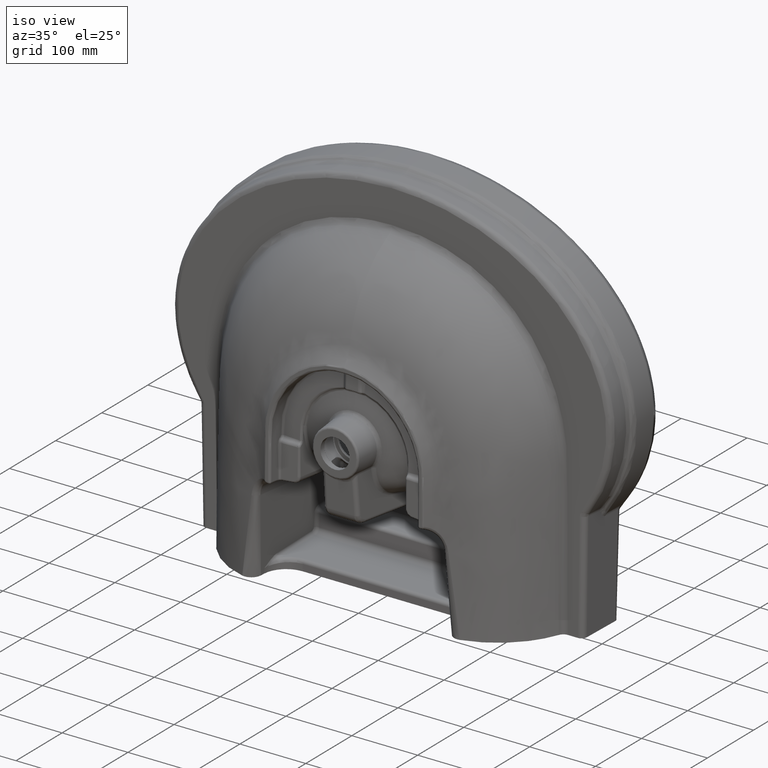
[diagram: clean part render]
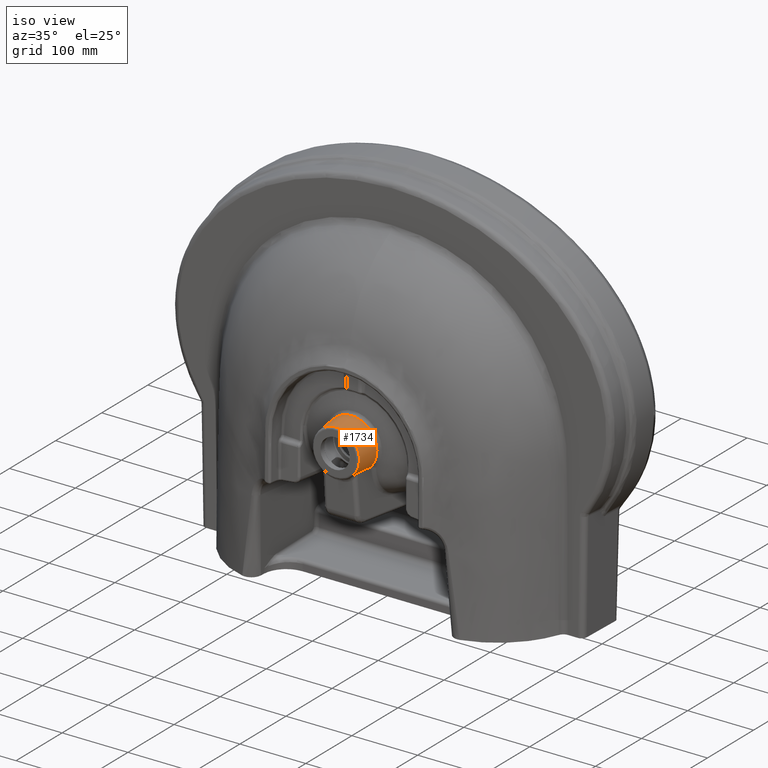
[diagram: same view with one face highlighted and labeled with its STEP entity id]
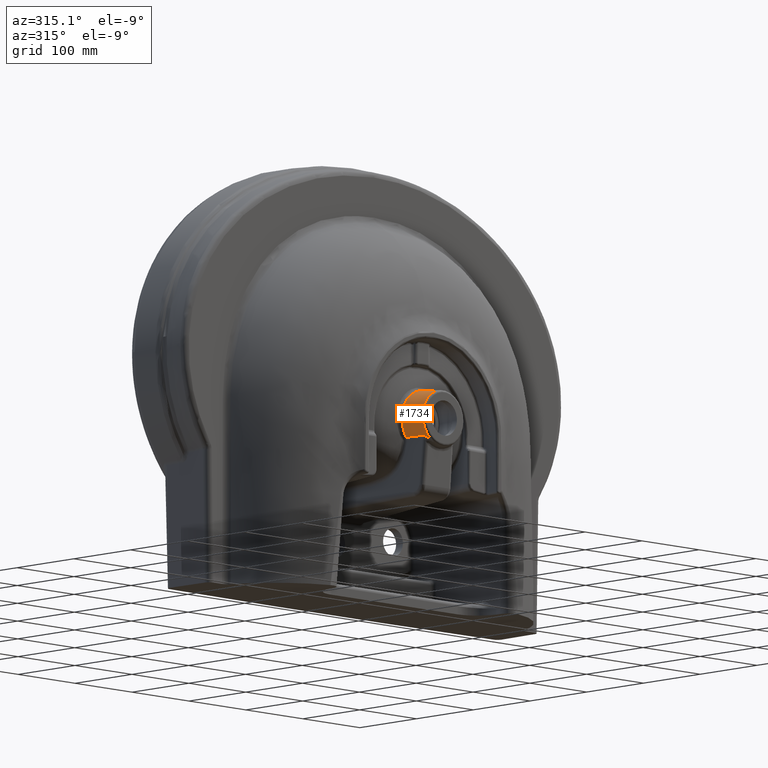
[diagram: same view with one face highlighted and labeled with its STEP entity id]
A machine part, iso view. The second image highlights one B-rep face of the part: STEP entity #1734.
A second angle (auxiliary view) of the same face is appended — the face is thin or edge-on in the first view.
In plain terms, the highlighted conical surface has half-angle 5 deg.
Its self-contained STEP definition (entity closure, byte-faithful):
#111=CONICAL_SURFACE('',#7331,36.7192591753,5.);
#1097=B_SPLINE_CURVE_WITH_KNOTS('',3,(#17355,#17356,#17357,#17358,#17359,
#17360,#17361,#17362,#17363,#17364,#17365,#17366,#17367,#17368,#17369,#17370,
#17371,#17372,#17373,#17374,#17375,#17376,#17377,#17378,#17379,#17380,#17381,
#17382,#17383,#17384,#17385,#17386,#17387,#17388,#17389,#17390),
 .UNSPECIFIED.,.F.,.F.,(4,2,2,2,2,2,2,2,2,2,2,2,2,2,2,2,2,4),(0.,0.125000000000004,
0.187500000000005,0.250000000000006,0.375000000000006,0.437500000000007,
0.468750000000006,0.500000000000006,0.562500000000006,0.593750000000006,
0.625000000000006,0.687500000000006,0.718750000000005,0.750000000000005,
0.812500000000004,0.843750000000003,0.875000000000003,1.),.UNSPECIFIED.);
#1100=B_SPLINE_CURVE_WITH_KNOTS('',3,(#17448,#17449,#17450,#17451),
 .UNSPECIFIED.,.F.,.F.,(4,4),(0.,1.),.UNSPECIFIED.);
#1101=B_SPLINE_CURVE_WITH_KNOTS('',3,(#17453,#17454,#17455,#17456,#17457,
#17458,#17459,#17460,#17461,#17462,#17463,#17464,#17465,#17466,#17467,#17468,
#17469,#17470,#17471,#17472,#17473,#17474,#17475,#17476,#17477,#17478,#17479,
#17480,#17481,#17482,#17483,#17484,#17485,#17486,#17487,#17488,#17489,#17490,
#17491,#17492,#17493,#17494,#17495,#17496,#17497,#17498),.UNSPECIFIED.,
 .F.,.F.,(4,2,2,2,2,1,2,2,2,2,2,2,1,1,2,2,2,2,2,2,1,2,2,2,4),(0.,0.125000000000002,
0.187500000000003,0.218750000000004,0.234375000000004,0.242187500000004,
0.246093750000005,0.250000000000005,0.375000000000006,0.437500000000008,
0.468750000000008,0.484375000000008,0.492187500000008,0.496093750000009,
0.498046875000009,0.500000000000009,0.625000000000008,0.687500000000008,
0.718750000000008,0.734375000000008,0.742187500000008,0.746093750000008,
0.750000000000008,0.875000000000004,1.),.UNSPECIFIED.);
#1102=B_SPLINE_CURVE_WITH_KNOTS('',3,(#17500,#17501,#17502,#17503,#17504,
#17505,#17506,#17507,#17508,#17509,#17510,#17511,#17512,#17513,#17514,#17515,
#17516,#17517,#17518,#17519,#17520,#17521,#17522,#17523,#17524,#17525,#17526,
#17527,#17528,#17529,#17530,#17531,#17532,#17533,#17534,#17535,#17536,#17537,
#17538,#17539,#17540,#17541,#17542,#17543,#17544),.UNSPECIFIED.,.F.,.F.,
(4,2,2,2,2,2,2,2,2,2,2,2,1,1,2,2,2,2,2,2,1,2,2,4),(0.,0.125000000000004,
0.187500000000006,0.218750000000007,0.234375000000007,0.242187500000007,
0.246093750000008,0.250000000000008,0.375000000000012,0.437500000000014,
0.468750000000015,0.484375000000015,0.492187500000016,0.496093750000016,
0.498046875000015,0.500000000000015,0.625000000000011,0.687500000000009,
0.718750000000009,0.734375000000008,0.742187500000008,0.746093750000008,
0.750000000000008,1.),.UNSPECIFIED.);
#1103=B_SPLINE_CURVE_WITH_KNOTS('',3,(#17546,#17547,#17548,#17549),
 .UNSPECIFIED.,.F.,.F.,(4,4),(0.,1.),.UNSPECIFIED.);
#1104=B_SPLINE_CURVE_WITH_KNOTS('',3,(#17551,#17552,#17553,#17554,#17555,
#17556,#17557,#17558,#17559,#17560,#17561,#17562,#17563,#17564,#17565,#17566,
#17567,#17568,#17569,#17570,#17571,#17572,#17573,#17574,#17575,#17576,#17577,
#17578,#17579,#17580,#17581,#17582,#17583,#17584,#17585,#17586),
 .UNSPECIFIED.,.F.,.F.,(4,2,2,2,2,2,2,2,2,2,2,2,2,2,2,2,2,4),(0.,0.0625000000000006,
0.0937500000000007,0.109375000000001,0.125000000000001,0.187500000000004,
0.218750000000005,0.234375000000006,0.250000000000006,0.312500000000007,
0.375000000000008,0.437500000000009,0.468750000000009,0.500000000000009,
0.625000000000007,0.687500000000006,0.750000000000006,1.),.UNSPECIFIED.);
#1734=ADVANCED_FACE('',(#2200),#111,.T.);
#2200=FACE_OUTER_BOUND('',#2679,.T.);
#2679=EDGE_LOOP('',(#3730,#3731,#3732,#3733,#3734,#3735,#3736));
#3730=ORIENTED_EDGE('',*,*,#6307,.F.);
#3731=ORIENTED_EDGE('',*,*,#6311,.F.);
#3732=ORIENTED_EDGE('',*,*,#6312,.T.);
#3733=ORIENTED_EDGE('',*,*,#6313,.T.);
#3734=ORIENTED_EDGE('',*,*,#6314,.F.);
#3735=ORIENTED_EDGE('',*,*,#6315,.F.);
#3736=ORIENTED_EDGE('',*,*,#6316,.F.);
#5538=VERTEX_POINT('',#17271);
#5541=VERTEX_POINT('',#17354);
#5545=VERTEX_POINT('',#17452);
#5546=VERTEX_POINT('',#17499);
#5547=VERTEX_POINT('',#17545);
#5548=VERTEX_POINT('',#17550);
#5549=VERTEX_POINT('',#17587);
#6307=EDGE_CURVE('',#5541,#5538,#1097,.T.);
#6311=EDGE_CURVE('',#5545,#5541,#1100,.T.);
#6312=EDGE_CURVE('',#5545,#5546,#1101,.T.);
#6313=EDGE_CURVE('',#5546,#5547,#1102,.T.);
#6314=EDGE_CURVE('',#5548,#5547,#1103,.T.);
#6315=EDGE_CURVE('',#5549,#5548,#1104,.T.);
#6316=EDGE_CURVE('',#5538,#5549,#7157,.T.);
#7157=CIRCLE('',#7330,35.23959057222);
#7330=AXIS2_PLACEMENT_3D('',#17588,#7737,#7738);
#7331=AXIS2_PLACEMENT_3D('',#17589,#7739,#7740);
#7737=DIRECTION('',(0.,-1.,0.));
#7738=DIRECTION('',(0.539936817690787,0.,-0.841705550000679));
#7739=DIRECTION('',(0.,1.,0.));
#7740=DIRECTION('',(0.,2.7932573675668E-016,-1.));
#17271=CARTESIAN_POINT('',(19.02690929033,-48.06148912405,-29.66111273829));
#17354=CARTESIAN_POINT('',(27.36742025504,-38.31693587159,-23.53018464543));
#17355=CARTESIAN_POINT('',(27.3674849632937,-38.3170449289168,-23.5302517340015));
#17356=CARTESIAN_POINT('',(27.3089306948264,-38.8289822426645,-23.5289065919521));
#17357=CARTESIAN_POINT('',(27.2186284288788,-39.353996151221,-23.5638213444564));
#17358=CARTESIAN_POINT('',(27.0356668548034,-40.1323249003992,-23.6700935815177));
#17359=CARTESIAN_POINT('',(26.9679059947458,-40.3869338605962,-23.7136910157977));
#17360=CARTESIAN_POINT('',(26.8163445516396,-40.8955857117562,-23.8180642734902));
#17361=CARTESIAN_POINT('',(26.7183074867943,-41.1877855233281,-23.8896759039773));
#17362=CARTESIAN_POINT('',(26.4700048708891,-41.8609349256838,-24.0776403027438));
#17363=CARTESIAN_POINT('',(26.2624670411606,-42.3417884650646,-24.2432716427274));
#17364=CARTESIAN_POINT('',(25.8750179028489,-43.0779945788448,-24.5613427019816));
#17365=CARTESIAN_POINT('',(25.7336663035254,-43.3254069527821,-24.678399446248));
#17366=CARTESIAN_POINT('',(25.5013144520807,-43.6961627604663,-24.8713733738905));
#17367=CARTESIAN_POINT('',(25.420477055001,-43.8196937419483,-24.9385900507838));
#17368=CARTESIAN_POINT('',(25.25178116209,-44.0661298044322,-25.0787907792987));
#17369=CARTESIAN_POINT('',(25.1438860613857,-44.2158423518676,-25.1683811830068));
#17370=CARTESIAN_POINT('',(24.9296598827644,-44.5024793157713,-25.3459313521029));
#17371=CARTESIAN_POINT('',(24.766684762523,-44.7071379405835,-25.4807043542421));
#17372=CARTESIAN_POINT('',(24.4886588616415,-45.0269474379565,-25.7085696879174));
#17373=CARTESIAN_POINT('',(24.3903900732851,-45.135675640813,-25.7887984511144));
#17374=CARTESIAN_POINT('',(24.1819273568029,-45.3558688581135,-25.9580480270397));
#17375=CARTESIAN_POINT('',(24.0437461874698,-45.4942462549857,-26.0695221146038));
#17376=CARTESIAN_POINT('',(23.7781541588802,-45.7496585187303,-26.2825939989064));
#17377=CARTESIAN_POINT('',(23.5384687565982,-45.9638868218391,-26.4730639763628));
#17378=CARTESIAN_POINT('',(23.1891746835658,-46.2445414559214,-26.7458564923392));
#17379=CARTESIAN_POINT('',(23.0711702163506,-46.3348018726569,-26.8373215896751));
#17380=CARTESIAN_POINT('',(22.832234981684,-46.5090032181179,-27.0209472757137));
#17381=CARTESIAN_POINT('',(22.7337352369406,-46.5781421513147,-27.0961651359303));
#17382=CARTESIAN_POINT('',(22.2995450906434,-46.8652076251323,-27.4240390121306));
#17383=CARTESIAN_POINT('',(22.0163687294589,-47.02926177799,-27.6332429616298));
#17384=CARTESIAN_POINT('',(21.6052438809971,-47.2418726315167,-27.9308289142294));
#17385=CARTESIAN_POINT('',(21.4704653123336,-47.3071595803439,-28.0273352652648));
#17386=CARTESIAN_POINT('',(21.2060243992109,-47.42774090661,-28.2147583600234));
#17387=CARTESIAN_POINT('',(21.1068199262109,-47.4708245963922,-28.2845313463963));
#17388=CARTESIAN_POINT('',(20.3203179167626,-47.786141197934,-28.8305277215603));
#17389=CARTESIAN_POINT('',(19.6761338005735,-47.9602026534731,-29.2552938913583));
#17390=CARTESIAN_POINT('',(19.0269376878194,-48.0614937267635,-29.6611570126401));
#17448=CARTESIAN_POINT('',(30.140318407424,-14.2360466944759,-23.4674152235691));
#17449=CARTESIAN_POINT('',(29.2131273885212,-22.2626338110819,-23.5151916719749));
#17450=CARTESIAN_POINT('',(28.2886616293489,-30.2896521403198,-23.5358614459981));
#17451=CARTESIAN_POINT('',(27.3673811386265,-38.316931359508,-23.5301526361117));
#17452=CARTESIAN_POINT('',(30.14027985695,-14.23604241999,-23.46738520628));
#17453=CARTESIAN_POINT('',(30.1403183029834,-14.2360466829053,-23.4674151405699));
#17454=CARTESIAN_POINT('',(32.2141334710564,-14.2889695574559,-20.7963789086787));
#17455=CARTESIAN_POINT('',(34.0100353713388,-14.3335525552318,-17.7479427803798));
#17456=CARTESIAN_POINT('',(36.0559305638153,-14.3879172367336,-12.7045122353821));
#17457=CARTESIAN_POINT('',(36.6298134949507,-14.4039538280405,-10.9458787089872));
#17458=CARTESIAN_POINT('',(37.3004350959598,-14.4248812612104,-8.21302720636841));
#17459=CARTESIAN_POINT('',(37.4922896037192,-14.4313358299686,-7.28632877095956));
#17460=CARTESIAN_POINT('',(37.7292231426979,-14.4402358196583,-5.87595657601444));
#17461=CARTESIAN_POINT('',(37.7997279405366,-14.4430721723136,-5.40244951999182));
#17462=CARTESIAN_POINT('',(37.8923776110321,-14.4471312354347,-4.68756661886323));
#17463=CARTESIAN_POINT('',(37.9354257578448,-14.4491119005297,-4.32897000648393));
#17464=CARTESIAN_POINT('',(37.9734861018171,-14.4510192659265,-3.96872920705334));
#17465=CARTESIAN_POINT('',(37.9977433139923,-14.4522745540359,-3.72821339944376));
#17466=CARTESIAN_POINT('',(38.0136438708285,-14.4531345313733,-3.56033642748416));
#17467=CARTESIAN_POINT('',(38.2340231745635,-14.4653734901693,-1.1458356619752));
#17468=CARTESIAN_POINT('',(38.3057096693966,-14.4766612187778,1.87692176085886));
#17469=CARTESIAN_POINT('',(37.5182663657218,-14.4927222827181,7.29025841448654));
#17470=CARTESIAN_POINT('',(37.1035747477198,-14.4979308825361,9.23820041150281));
#17471=CARTESIAN_POINT('',(36.1504069776095,-14.5055261500201,12.3149742425542));
#17472=CARTESIAN_POINT('',(35.7774291119202,-14.5080216338076,13.3659962164569));
#17473=CARTESIAN_POINT('',(35.1222267882946,-14.511710451428,14.969265607986));
#17474=CARTESIAN_POINT('',(34.8878733950134,-14.5129309892914,15.5081155810465));
#17475=CARTESIAN_POINT('',(34.510861873748,-14.5147481940712,16.3213300554565));
#17476=CARTESIAN_POINT('',(34.3159865175074,-14.5156533959574,16.7291692191514));
#17477=CARTESIAN_POINT('',(34.0771550907353,-14.5167035139429,17.2067336984464));
#17478=CARTESIAN_POINT('',(33.9723048055206,-14.5171522893191,17.4117343222196));
#17479=CARTESIAN_POINT('',(33.9018465786638,-14.517451189528,17.5484696745133));
#17480=CARTESIAN_POINT('',(33.851706712629,-14.5176614821681,17.6448492875682));
#17481=CARTESIAN_POINT('',(32.4764808219297,-14.5233933450468,20.2744620869653));
#17482=CARTESIAN_POINT('',(30.6525485071368,-14.5271959104296,23.0426536033496));
#17483=CARTESIAN_POINT('',(26.959791517488,-14.5301380860187,27.0868119324599));
#17484=CARTESIAN_POINT('',(25.5700670335869,-14.5306585324676,28.4146566162577));
#17485=CARTESIAN_POINT('',(23.2286591322079,-14.5307487840196,30.3088509046117));
#17486=CARTESIAN_POINT('',(22.4055137048678,-14.5306637981833,30.923844423221));
#17487=CARTESIAN_POINT('',(21.1058601048247,-14.5303637148987,31.8121020714521));
#17488=CARTESIAN_POINT('',(20.6618308281748,-14.5302349197154,32.1024744168788));
#17489=CARTESIAN_POINT('',(19.979563664164,-14.529998575808,32.5281901918884));
#17490=CARTESIAN_POINT('',(19.6343754747791,-14.5298696160711,32.7385867028634));
#17491=CARTESIAN_POINT('',(19.2831155268354,-14.5297244746595,32.9450465400622));
#17492=CARTESIAN_POINT('',(19.0475948909604,-14.5296241177907,33.0817840381513));
#17493=CARTESIAN_POINT('',(18.9745185229726,-14.5295926195071,33.12401462954));
#17494=CARTESIAN_POINT('',(13.5471976005106,-14.5271422877727,36.1976188273594));
#17495=CARTESIAN_POINT('',(8.9005042420836,-14.5253589627745,37.265961448638));
#17496=CARTESIAN_POINT('',(2.41686801799315,-14.5229778212968,38.2380113546587));
#17497=CARTESIAN_POINT('',(0.508638632665941,-14.5223800048173,38.1738695507199));
#17498=CARTESIAN_POINT('',(0.000821614707323499,-14.5223749425972,38.1738809233294));
#17499=CARTESIAN_POINT('',(0.000821614582285,-14.52237443431,38.17387511358));
#17500=CARTESIAN_POINT('',(0.000821614707323499,-14.5223749425972,38.1738809233294));
#17501=CARTESIAN_POINT('',(-0.509782623979628,-14.5223794442278,38.1738915191997));
#17502=CARTESIAN_POINT('',(-2.41939498065212,-14.5229768879692,38.2378491468848));
#17503=CARTESIAN_POINT('',(-7.28203148436872,-14.5247624667476,37.5085004898617));
#17504=CARTESIAN_POINT('',(-9.23410290025165,-14.5255058952014,37.113184842424));
#17505=CARTESIAN_POINT('',(-12.5691493272236,-14.5268433911738,36.0636942344296));
#17506=CARTESIAN_POINT('',(-13.7477688531696,-14.5273262820465,35.6370907561144));
#17507=CARTESIAN_POINT('',(-15.5943105481849,-14.5281062066784,34.8492783304393));
#17508=CARTESIAN_POINT('',(-16.2228389705281,-14.5283754462762,34.5620045616055));
#17509=CARTESIAN_POINT('',(-17.1815619833278,-14.5287932027536,34.0899271344415));
#17510=CARTESIAN_POINT('',(-17.5037849335921,-14.5289347710929,33.9257069149451));
#17511=CARTESIAN_POINT('',(-17.9905830164464,-14.5291505978719,33.6685688292875));
#17512=CARTESIAN_POINT('',(-18.1534258890279,-14.5292231191766,33.5810548901851));
#17513=CARTESIAN_POINT('',(-18.4801751832026,-14.5293693198761,33.4023392549505));
#17514=CARTESIAN_POINT('',(-18.6893634354502,-14.5294634538647,33.2854963633434));
#17515=CARTESIAN_POINT('',(-22.6199770954541,-14.5312389807845,31.0597555034332));
#17516=CARTESIAN_POINT('',(-25.7275499162774,-14.531119416367,28.4360741629949));
#17517=CARTESIAN_POINT('',(-29.4205865128326,-14.5281781385035,24.3919679924644));
#17518=CARTESIAN_POINT('',(-30.4930390915308,-14.5267373906762,23.0237050144068));
#17519=CARTESIAN_POINT('',(-31.8925689124368,-14.5238857861259,20.9946239942067));
#17520=CARTESIAN_POINT('',(-32.3243026759904,-14.5228201708076,20.3220069490456));
#17521=CARTESIAN_POINT('',(-32.9238709565683,-14.5210491271278,19.3241645912284));
#17522=CARTESIAN_POINT('',(-33.1157244160037,-14.5204300091175,18.9933893114669));
#17523=CARTESIAN_POINT('',(-33.392036804333,-14.5194581769264,18.500594919144));
#17524=CARTESIAN_POINT('',(-33.5273262114093,-14.518961472037,18.2550391079784));
#17525=CARTESIAN_POINT('',(-33.6802657181403,-14.51836310261,17.9701554840989));
#17526=CARTESIAN_POINT('',(-33.7447744166902,-14.5181026127722,17.8484179495282));
#17527=CARTESIAN_POINT('',(-33.7875512377021,-14.5179280538141,17.767340011474));
#17528=CARTESIAN_POINT('',(-33.7941961278308,-14.5179012868944,17.7548117144608));
#17529=CARTESIAN_POINT('',(-36.120492553142,-14.5082071454513,13.3069720750175));
#17530=CARTESIAN_POINT('',(-37.2554150287525,-14.4980810075112,9.09625946698141));
#17531=CARTESIAN_POINT('',(-38.0430916609467,-14.4820200948994,3.68280234961346));
#17532=CARTESIAN_POINT('',(-38.1538329275226,-14.4765211730785,2.02124899711919));
#17533=CARTESIAN_POINT('',(-38.1853151469055,-14.4680548639218,-0.227995687096298));
#17534=CARTESIAN_POINT('',(-38.173231193819,-14.4651964397987,-0.937511172099149));
#17535=CARTESIAN_POINT('',(-38.131413319571,-14.4608543220076,-1.93992417782301));
#17536=CARTESIAN_POINT('',(-38.1135141646746,-14.4593978691428,-2.263763747679));
#17537=CARTESIAN_POINT('',(-38.0818931335519,-14.4571995694441,-2.73398146285372));
#17538=CARTESIAN_POINT('',(-38.0648884280586,-14.4560970144943,-2.96520578852697));
#17539=CARTESIAN_POINT('',(-38.0463011453091,-14.454989351894,-3.19059295855303));
#17540=CARTESIAN_POINT('',(-38.0335804159369,-14.454249775127,-3.33955323784222));
#17541=CARTESIAN_POINT('',(-38.0313835933395,-14.4541198063927,-3.36595683273099));
#17542=CARTESIAN_POINT('',(-37.3159609103432,-14.4143846184969,-11.2055803078384));
#17543=CARTESIAN_POINT('',(-34.2881448295597,-14.3418973409129,-18.1250899706908));
#17544=CARTESIAN_POINT('',(-30.1403183689745,-14.2360466630576,-23.467415058641));
#17545=CARTESIAN_POINT('',(-30.14027920016,-14.23604232,-23.46738456159));
#17546=CARTESIAN_POINT('',(-27.3673696561261,-38.317031430264,-23.5301525623318));
#17547=CARTESIAN_POINT('',(-28.2886539704617,-30.289718847176,-23.5358615927909));
#17548=CARTESIAN_POINT('',(-29.2131235830235,-22.262667163994,-23.5151918010569));
#17549=CARTESIAN_POINT('',(-30.1403184739751,-14.2360466746902,-23.467415142109));
#17550=CARTESIAN_POINT('',(-27.36736965644,-38.3170314303,-23.53015256196));
#17551=CARTESIAN_POINT('',(-19.027101458101,-48.0614897150538,-29.6610440898957));
#17552=CARTESIAN_POINT('',(-19.3516298437917,-48.0108513395685,-29.4581515653292));
#17553=CARTESIAN_POINT('',(-19.6748842831672,-47.9419716474568,-29.2506176072521));
#17554=CARTESIAN_POINT('',(-20.1560376244074,-47.8103892349635,-28.933428174171));
#17555=CARTESIAN_POINT('',(-20.3157999780855,-47.7618195998259,-28.8267194673563));
#17556=CARTESIAN_POINT('',(-20.5542757126347,-47.6818072754574,-28.6653477260014));
#17557=CARTESIAN_POINT('',(-20.6335730367651,-47.653945905931,-28.6113384105258));
#17558=CARTESIAN_POINT('',(-20.7917373448125,-47.5957996964306,-28.5029216074705));
#17559=CARTESIAN_POINT('',(-20.8958930177712,-47.5553767210754,-28.4309592042547));
#17560=CARTESIAN_POINT('',(-21.1626030831147,-47.448460998969,-28.2458119852148));
#17561=CARTESIAN_POINT('',(-21.4086128827227,-47.34057941868,-28.0725110392666));
#17562=CARTESIAN_POINT('',(-21.8205481582276,-47.1312243639822,-27.7752584732612));
#17563=CARTESIAN_POINT('',(-21.964988304785,-47.0534719614777,-27.669971672993));
#17564=CARTESIAN_POINT('',(-22.1913287363554,-46.9227446322685,-27.5029912636027));
#17565=CARTESIAN_POINT('',(-22.2683869565548,-46.8768163759126,-27.4458244725655));
#17566=CARTESIAN_POINT('',(-22.4255323357135,-46.7798660574487,-27.3285440254791));
#17567=CARTESIAN_POINT('',(-22.5259724826864,-46.715414524618,-27.2530600448377));
#17568=CARTESIAN_POINT('',(-22.8316855514023,-46.5136968519518,-27.0221903480501));
#17569=CARTESIAN_POINT('',(-23.0808125964999,-46.3316851571788,-26.8304411539998));
#17570=CARTESIAN_POINT('',(-23.5251865196299,-45.9744051026001,-26.4834863775088));
#17571=CARTESIAN_POINT('',(-23.7212442521312,-45.8041536861908,-26.3282286156786));
#17572=CARTESIAN_POINT('',(-24.1830692929801,-45.3604282548914,-25.9577694278077));
#17573=CARTESIAN_POINT('',(-24.3898195535593,-45.1402484128282,-25.7895449304633));
#17574=CARTESIAN_POINT('',(-24.66775872174,-44.821100687864,-25.5617994230087));
#17575=CARTESIAN_POINT('',(-24.7550620791913,-44.7165807176797,-25.4899464576345));
#17576=CARTESIAN_POINT('',(-24.9194615777905,-44.5124694601926,-25.3542895589979));
#17577=CARTESIAN_POINT('',(-24.9775915477761,-44.4382082118188,-25.3062058381681));
#17578=CARTESIAN_POINT('',(-25.4336436898088,-43.8287727858849,-24.9282521200657));
#17579=CARTESIAN_POINT('',(-25.7407753496535,-43.3321245922694,-24.6715914989666));
#17580=CARTESIAN_POINT('',(-26.1277816354509,-42.5982915955009,-24.3538081624401));
#17581=CARTESIAN_POINT('',(-26.2444912348554,-42.3557664815755,-24.2590057231292));
#17582=CARTESIAN_POINT('',(-26.454371164193,-41.8814502256657,-24.0916060400812));
#17583=CARTESIAN_POINT('',(-26.5340853650924,-41.6860896121473,-24.0291954730329));
#17584=CARTESIAN_POINT('',(-27.0163227502219,-40.3833325984852,-23.6637218948845));
#17585=CARTESIAN_POINT('',(-27.2502204552342,-39.3408739273383,-23.5280992225563));
#17586=CARTESIAN_POINT('',(-27.3674106087248,-38.3170361906908,-23.5301877775718));
#17587=CARTESIAN_POINT('',(-19.02707087095,-48.0614847576,-29.66099640277));
#17588=CARTESIAN_POINT('',(0.,-48.06146722824,0.));
#17589=CARTESIAN_POINT('',(0.,-31.14877770437,0.));